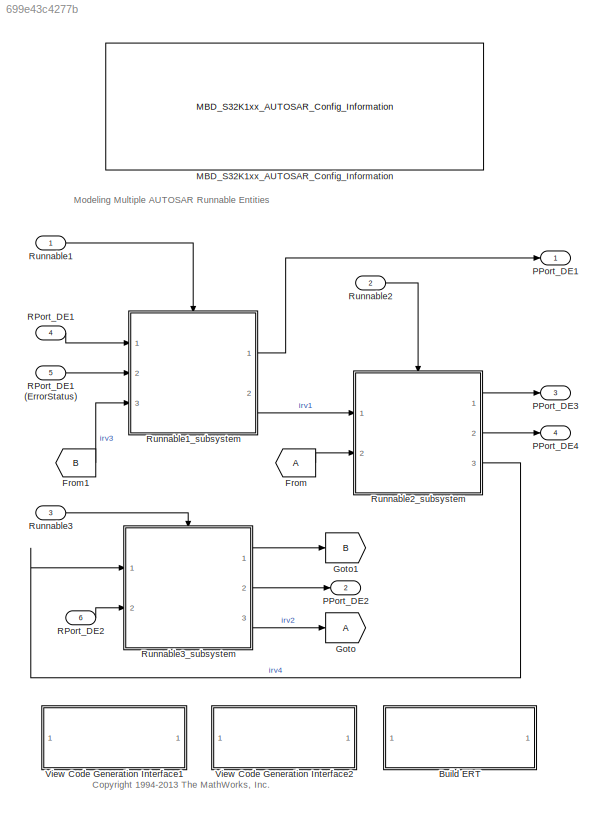
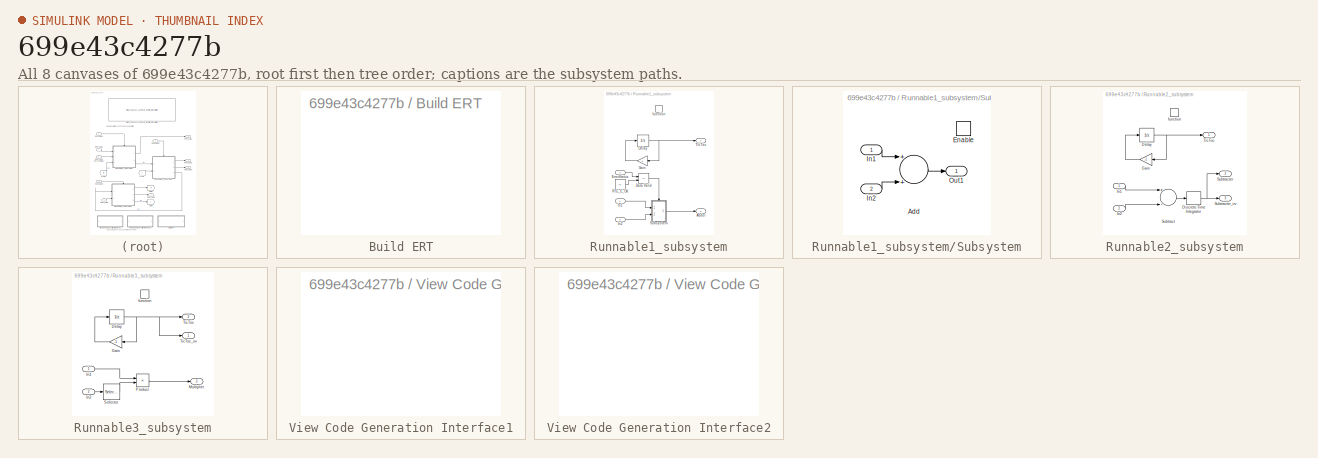
[diagram: thumbnail index - all 8 canvases of the model, root first then tree order]
MODEL slx_699e43c4277b
KIND model
CONFIG AbsTol = auto
CONFIG EnableMultiTasking = on
CONFIG FixedStep = 0.1
CONFIG InitFcn = mbd_s32k_as_consistency_checks(bdroot(gcs));
CONFIG MaxStep = .0001
CONFIG MinStep = auto
CONFIG RelTol = 1e-3
CONFIG SampleTimeConstraint = Unconstrained
CONFIG Solver = FixedStepDiscrete
CONFIG SolverName = FixedStepDiscrete
CONFIG StartTime = 0.0
CONFIG StopTime = 200
BLOCK [SubSystem] Build ERT
  Commented = on
  OpenFcn = try\n    if ~exist('rtwdemo_ert', 'dir')\n        disp('Creating working directory rtwdemo_ert')\n        mkdir('rtwdemo_ert')\n    end\n    cd('rtwdemo_ert');\n    rtwbuilddemomodel('autosar_multirunnables_PIL');\n    cd('..');\ncatch myException\n    rethrow(myException);\nend
  PermitHierarchicalResolution = ExplicitOnly
  Ports = []
  RequestExecContextInheritance = off
BLOCK [From] From
BLOCK [From] From1
  GotoTag = B
BLOCK [Goto] Goto
BLOCK [Goto] Goto1
  GotoTag = B
BLOCK [Reference] MBD_S32K1xx_AUTOSAR_Config_Information  REF=mbd_s32k_as_ec_toolbox/MBD_S32K1xx_AUTOSAR_Config_Information
  Ports = []
  SourceBlock = mbd_s32k_as_ec_toolbox/MBD_S32K1xx_AUTOSAR_Config_Information
  SourceType = MBDTBX_EC_S32K_AS
BLOCK [Outport] PPort_DE1
  IconDisplay = Port number
  OutDataTypeStr = int8
  PortDimensions = 1
  SamplingMode = Sample based
  SignalType = real
BLOCK [Outport] PPort_DE2
  IconDisplay = Port number
  OutDataTypeStr = int8
  Port = 2
  PortDimensions = 1
  SamplingMode = Sample based
  SignalType = real
BLOCK [Outport] PPort_DE3
  IconDisplay = Port number
  OutDataTypeStr = int8
  Port = 3
  PortDimensions = 2
  SamplingMode = Sample based
  SignalType = real
BLOCK [Outport] PPort_DE4
  IconDisplay = Port number
  OutDataTypeStr = double
  Port = 4
  PortDimensions = 1
  SamplingMode = Sample based
  SignalType = real
BLOCK [Inport] RPort_DE1
  IconDisplay = Port number
  OutDataTypeStr = double
  Port = 4
  PortDimensions = 1
  SamplingMode = Sample based
  SignalType = real
BLOCK [Inport] RPort_DE1 (ErrorStatus)
  IconDisplay = Port number
  OutDataTypeStr = uint8
  Port = 5
  PortDimensions = 1
  SamplingMode = Sample based
  SignalType = real
BLOCK [Inport] RPort_DE2
  IconDisplay = Port number
  OutDataTypeStr = double
  Port = 6
  PortDimensions = 2
  SamplingMode = Sample based
  SignalType = real
BLOCK [Inport] Runnable1
  IconDisplay = Port number
  OutputFunctionCall = on
  PortDimensions = 1
  SampleTime = 1
  SamplingMode = Sample based
  SignalType = real
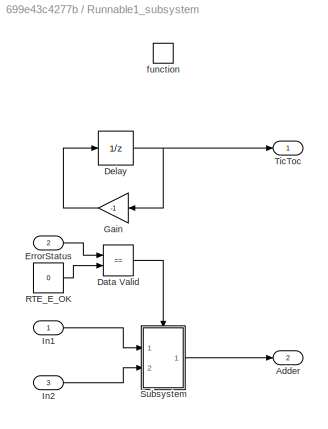
BLOCK [SubSystem] Runnable1_subsystem
  PermitHierarchicalResolution = ExplicitOnly
  Ports = [3, 2, 0, 1]
  RTWFcnName = foo
  RequestExecContextInheritance = off
  ShowPortLabels = none
  Tag = DoNotProfile
  TreatAsAtomicUnit = on
BLOCK [Outport] Runnable1_subsystem/Adder
  IconDisplay = Port number
  InitialOutput = 0
  Port = 2
BLOCK [RelationalOperator] Runnable1_subsystem/Data Valid
  InputSameDT = off
  Operator = ==
  OutDataTypeStr = boolean
  Ports = [2, 1]
BLOCK [UnitDelay] Runnable1_subsystem/Delay
  InitialCondition = 1
  InputProcessing = Elements as channels (sample based)
  SampleTime = -1
BLOCK [Inport] Runnable1_subsystem/ErrorStatus
  IconDisplay = Port number
  Port = 2
BLOCK [Gain] Runnable1_subsystem/Gain
  Gain = -1
  OutDataTypeStr = fixdt(1,8,0)
  ParamDataTypeStr = Inherit: Inherit via internal rule
  SaturateOnIntegerOverflow = off
BLOCK [Inport] Runnable1_subsystem/In1
  IconDisplay = Port number
BLOCK [Inport] Runnable1_subsystem/In2
  IconDisplay = Port number
  Port = 3
BLOCK [Constant] Runnable1_subsystem/RTE_E_OK
  Value = 0
BLOCK [SubSystem] Runnable1_subsystem/Subsystem
  Ports = [2, 1, 1]
  RequestExecContextInheritance = off
BLOCK [Sum] Runnable1_subsystem/Subsystem/Add
  InputSameDT = off
  OutDataTypeStr = Inherit: Inherit via internal rule
  Ports = [2, 1]
  SaturateOnIntegerOverflow = off
BLOCK [EnablePort] Runnable1_subsystem/Subsystem/Enable
  Ports = []
BLOCK [Inport] Runnable1_subsystem/Subsystem/In1
  IconDisplay = Port number
BLOCK [Inport] Runnable1_subsystem/Subsystem/In2
  IconDisplay = Port number
  Port = 2
BLOCK [Outport] Runnable1_subsystem/Subsystem/Out1
  IconDisplay = Port number
BLOCK [Outport] Runnable1_subsystem/TicToc
  IconDisplay = Port number
  InitialOutput = 0
BLOCK [TriggerPort] Runnable1_subsystem/function
  Ports = []
  SampleTime = -1
  SampleTimeType = periodic
  StatesWhenEnabling = held
  TriggerType = function-call
  VariantControl = (inherit)
BLOCK [Inport] Runnable2
  IconDisplay = Port number
  OutputFunctionCall = on
  Port = 2
  PortDimensions = 1
  SampleTime = 1
  SamplingMode = Sample based
  SignalType = real
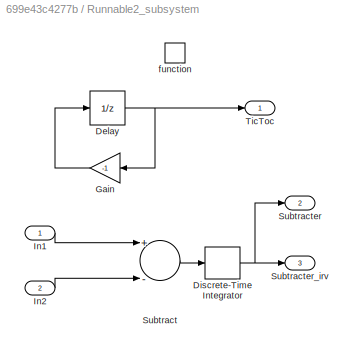
BLOCK [SubSystem] Runnable2_subsystem
  PermitHierarchicalResolution = ExplicitOnly
  Ports = [2, 3, 0, 1]
  RTWFcnName = foo
  RequestExecContextInheritance = off
  ShowPortLabels = none
  Tag = DoNotProfile
  TreatAsAtomicUnit = on
BLOCK [UnitDelay] Runnable2_subsystem/Delay
  InitialCondition = 1
  InputProcessing = Elements as channels (sample based)
  SampleTime = -1
BLOCK [DiscreteIntegrator] Runnable2_subsystem/Discrete-Time Integrator
  ICPrevOutput = DiscIntNeverNeededParam
  ICPrevScaledInput = DiscIntNeverNeededParam
  Ports = [1, 1]
  SampleTime = -1
BLOCK [Gain] Runnable2_subsystem/Gain
  Gain = -1
  OutDataTypeStr = fixdt(1,8,0)
  ParamDataTypeStr = Inherit: Inherit via internal rule
  SaturateOnIntegerOverflow = off
BLOCK [Inport] Runnable2_subsystem/In1
  IconDisplay = Port number
BLOCK [Inport] Runnable2_subsystem/In2
  IconDisplay = Port number
  Port = 2
BLOCK [Sum] Runnable2_subsystem/Subtract
  InputSameDT = off
  Inputs = +-
  OutDataTypeStr = Inherit: Inherit via internal rule
  Ports = [2, 1]
  SaturateOnIntegerOverflow = off
BLOCK [Outport] Runnable2_subsystem/Subtracter
  IconDisplay = Port number
  InitialOutput = 0
  Port = 2
BLOCK [Outport] Runnable2_subsystem/Subtracter_irv
  IconDisplay = Port number
  Port = 3
BLOCK [Outport] Runnable2_subsystem/TicToc
  IconDisplay = Port number
  InitialOutput = 0
BLOCK [TriggerPort] Runnable2_subsystem/function
  Ports = []
  SampleTime = -1
  SampleTimeType = periodic
  StatesWhenEnabling = held
  TriggerType = function-call
  VariantControl = (inherit)
BLOCK [Inport] Runnable3
  IconDisplay = Port number
  OutputFunctionCall = on
  Port = 3
  PortDimensions = 1
  SampleTime = 10
  SamplingMode = Sample based
  SignalType = real
BLOCK [SubSystem] Runnable3_subsystem
  PermitHierarchicalResolution = ExplicitOnly
  Ports = [2, 3, 0, 1]
  RTWFcnName = foo
  RequestExecContextInheritance = off
  ShowPortLabels = none
  Tag = DoNotProfile
  TreatAsAtomicUnit = on
BLOCK [UnitDelay] Runnable3_subsystem/Delay
  InitialCondition = 1
  InputProcessing = Elements as channels (sample based)
  SampleTime = -1
BLOCK [Gain] Runnable3_subsystem/Gain
  Gain = -1
  OutDataTypeStr = fixdt(1,8,0)
  ParamDataTypeStr = Inherit: Inherit via internal rule
  SaturateOnIntegerOverflow = off
BLOCK [Inport] Runnable3_subsystem/In1
  IconDisplay = Port number
  OutDataTypeStr = double
BLOCK [Inport] Runnable3_subsystem/In2
  IconDisplay = Port number
  Port = 2
BLOCK [Outport] Runnable3_subsystem/Multiplier
  IconDisplay = Port number
  InitialOutput = 0
  Port = 3
BLOCK [Product] Runnable3_subsystem/Product
  InputSameDT = off
  Inputs = **
  Ports = [2, 1]
  RndMeth = Floor
  SaturateOnIntegerOverflow = off
BLOCK [Selector] Runnable3_subsystem/Selector
  IndexOptions = Index vector (dialog)
  Indices = 1
  InputPortWidth = 2
  OutputSizes = 1
  Ports = [1, 1]
BLOCK [Outport] Runnable3_subsystem/TicToc
  IconDisplay = Port number
  InitialOutput = 0
  Port = 2
BLOCK [Outport] Runnable3_subsystem/TicToc_irv
  IconDisplay = Port number
BLOCK [TriggerPort] Runnable3_subsystem/function
  Ports = []
  SampleTime = -1
  SampleTimeType = periodic
  StatesWhenEnabling = held
  TriggerType = function-call
  VariantControl = (inherit)
BLOCK [SubSystem] View Code Generation Interface1
  OpenFcn = autosar_ui_launch('autosar_multirunnables_PIL')
  PermitHierarchicalResolution = ExplicitOnly
  Ports = []
  RequestExecContextInheritance = off
BLOCK [SubSystem] View Code Generation Interface2
  OpenFcn = dlg = slCfgPrmDlg(bdroot,'Open');                                     \ndlg = slCfgPrmDlg(bdroot,'TurnToPage','Code Generation/AUTOSAR Code Generation Options'); clear dlg;
  PermitHierarchicalResolution = ExplicitOnly
  Ports = []
  RequestExecContextInheritance = off
ANNOTATION (root): <copyright redacted>
ANNOTATION (root): Modeling Multiple AUTOSAR Runnable Entities
LINE From1:1 -> Runnable1_subsystem:3
LINE From:1 -> Runnable2_subsystem:2
LINE RPort_DE1 (ErrorStatus):1 -> Runnable1_subsystem:2
LINE RPort_DE1:1 -> Runnable1_subsystem:1
LINE RPort_DE2:1 -> Runnable3_subsystem:2
LINE Runnable1:1 -> Runnable1_subsystem:trigger
LINE Runnable1_subsystem/Data Valid:1 -> Runnable1_subsystem/Subsystem:enable
NET Runnable1_subsystem/Delay:1 -> Runnable1_subsystem/Gain:1, Runnable1_subsystem/TicToc:1
LINE Runnable1_subsystem/ErrorStatus:1 -> Runnable1_subsystem/Data Valid:1
LINE Runnable1_subsystem/Gain:1 -> Runnable1_subsystem/Delay:1
LINE Runnable1_subsystem/In1:1 -> Runnable1_subsystem/Subsystem:1
LINE Runnable1_subsystem/In2:1 -> Runnable1_subsystem/Subsystem:2
LINE Runnable1_subsystem/RTE_E_OK:1 -> Runnable1_subsystem/Data Valid:2
LINE Runnable1_subsystem/Subsystem/Add:1 -> Runnable1_subsystem/Subsystem/Out1:1
LINE Runnable1_subsystem/Subsystem/In1:1 -> Runnable1_subsystem/Subsystem/Add:1
LINE Runnable1_subsystem/Subsystem/In2:1 -> Runnable1_subsystem/Subsystem/Add:2
LINE Runnable1_subsystem/Subsystem:1 -> Runnable1_subsystem/Adder:1
LINE Runnable1_subsystem:1 -> PPort_DE1:1
LINE Runnable1_subsystem:2 -> Runnable2_subsystem:1
LINE Runnable2:1 -> Runnable2_subsystem:trigger
NET Runnable2_subsystem/Delay:1 -> Runnable2_subsystem/Gain:1, Runnable2_subsystem/TicToc:1
NET Runnable2_subsystem/Discrete-Time Integrator:1 -> Runnable2_subsystem/Subtracter:1, Runnable2_subsystem/Subtracter_irv:1
LINE Runnable2_subsystem/Gain:1 -> Runnable2_subsystem/Delay:1
LINE Runnable2_subsystem/In1:1 -> Runnable2_subsystem/Subtract:1
LINE Runnable2_subsystem/In2:1 -> Runnable2_subsystem/Subtract:2
LINE Runnable2_subsystem/Subtract:1 -> Runnable2_subsystem/Discrete-Time Integrator:1
LINE Runnable2_subsystem:1 -> PPort_DE3:1
LINE Runnable2_subsystem:2 -> PPort_DE4:1
LINE Runnable2_subsystem:3 -> Runnable3_subsystem:1
LINE Runnable3:1 -> Runnable3_subsystem:trigger
NET Runnable3_subsystem/Delay:1 -> Runnable3_subsystem/Gain:1, Runnable3_subsystem/TicToc:1, Runnable3_subsystem/TicToc_irv:1
LINE Runnable3_subsystem/Gain:1 -> Runnable3_subsystem/Delay:1
LINE Runnable3_subsystem/In1:1 -> Runnable3_subsystem/Product:1
LINE Runnable3_subsystem/In2:1 -> Runnable3_subsystem/Selector:1
LINE Runnable3_subsystem/Product:1 -> Runnable3_subsystem/Multiplier:1
LINE Runnable3_subsystem/Selector:1 -> Runnable3_subsystem/Product:2
LINE Runnable3_subsystem:1 -> Goto1:1
LINE Runnable3_subsystem:2 -> PPort_DE2:1
LINE Runnable3_subsystem:3 -> Goto:1
note: NET lines group one-source signal fan-out (src -> all destinations, sorted); 1:1 wires keep LINE
